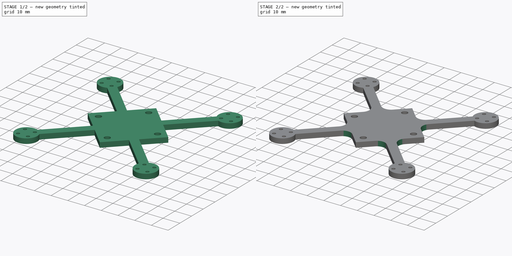
[diagram: build sequence overview — one tinted view per stage of 2, left to right]
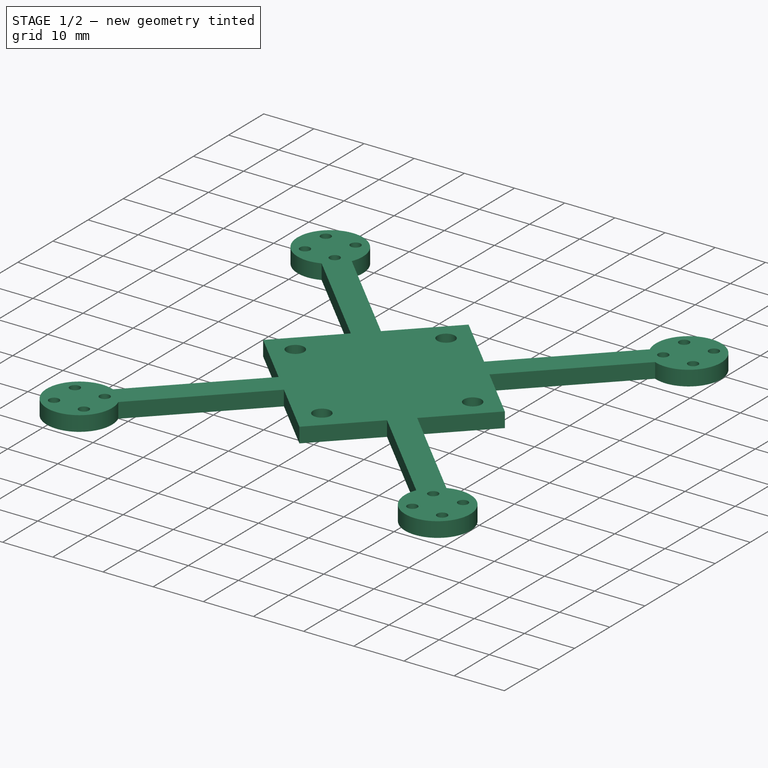
[diagram: stage 1 of 2 — iso view after this stage's code; geometry added in this stage tinted green]
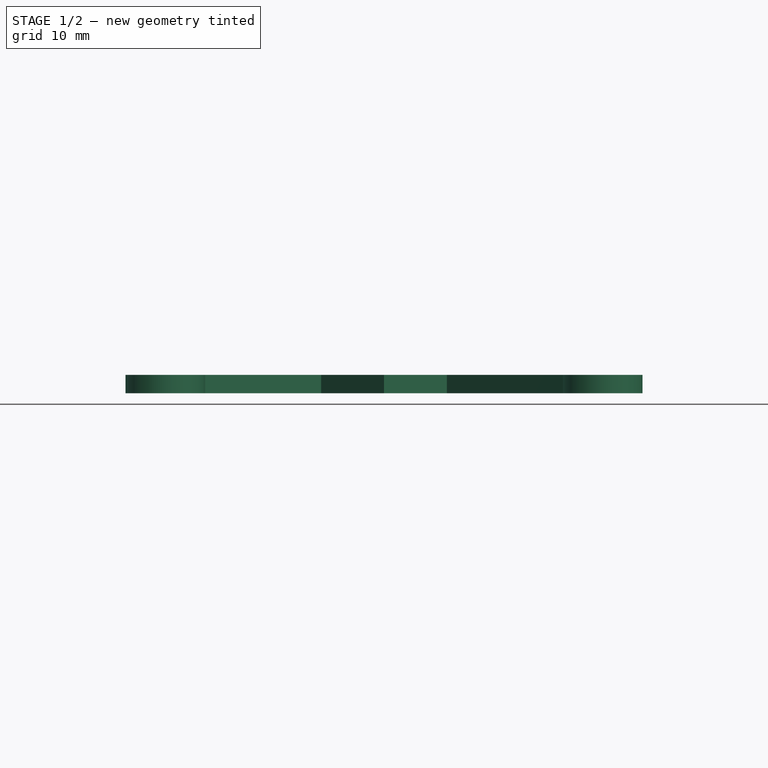
[diagram: stage 1 of 2 — front view after this stage's code; geometry added in this stage tinted green]
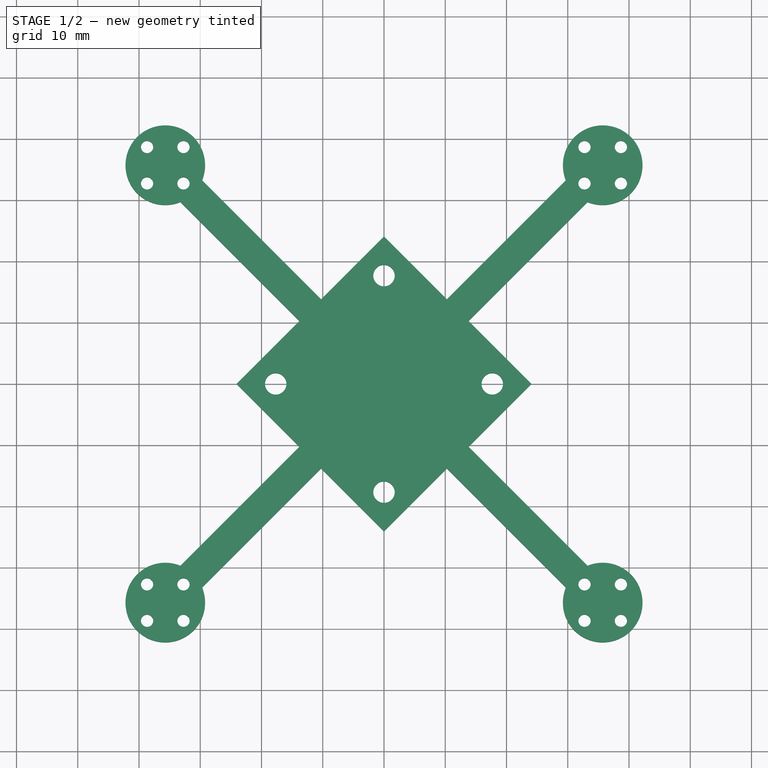
[diagram: stage 1 of 2 — top view after this stage's code; geometry added in this stage tinted green]
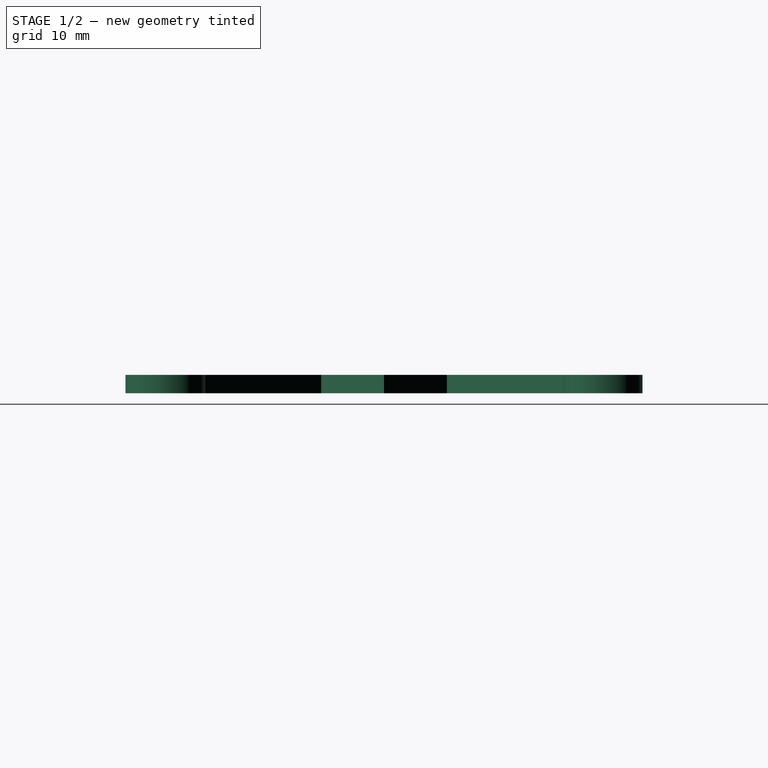
[diagram: stage 1 of 2 — right view after this stage's code; geometry added in this stage tinted green]
FCSTD DOCUMENT  (FreeCAD 0.19R24267 +99 (Git))
Label: 1104机架
License: All rights reserved
LicenseURL: http://en.wikipedia.org/wiki/All_rights_reserved
objects: Sketcher::SketchObject×2, PartDesign::Pad×1, PartDesign::Fillet×1, PartDesign::Body×1
note: 7 computed .brp shape members not serialized (recipe doc carries the construction recipe); baked Part::Feature solids carry a one-line shape summary decoded from their .brp

FEATURE [Sketcher::SketchObject] Sketch
  FullyConstrained = false
  MapMode = 5
  Support = -> [XY_Plane]
  sketch-geometry (103):
    g0: Circle CenterX=-35.7089 CenterY=35.7089 CenterZ=0 NormalX=0 NormalY=0 NormalZ=1 AngleXU=0 Radius=29
    g1: Circle CenterX=-38.6787 CenterY=38.6787 CenterZ=0 NormalX=0 NormalY=0 NormalZ=1 AngleXU=0 Radius=1
    g2: Circle CenterX=-38.6787 CenterY=32.739 CenterZ=0 NormalX=0 NormalY=0 NormalZ=1 AngleXU=0 Radius=1
    g3: Circle CenterX=-32.739 CenterY=38.6787 CenterZ=0 NormalX=0 NormalY=0 NormalZ=1 AngleXU=0 Radius=1
    g4: Circle CenterX=-32.739 CenterY=32.739 CenterZ=0 NormalX=0 NormalY=0 NormalZ=1 AngleXU=0 Radius=1
    g5: LineSegment StartX=-32.739 StartY=38.6787 StartZ=0 EndX=-38.6787 EndY=32.739 EndZ=0
    g6: LineSegment StartX=-32.739 StartY=32.739 StartZ=0 EndX=-38.6787 EndY=38.6787 EndZ=0
    g7: LineSegment StartX=-38.6787 StartY=38.6787 StartZ=0 EndX=-32.739 EndY=38.6787 EndZ=0
    g8: LineSegment StartX=-38.6787 StartY=38.6787 StartZ=0 EndX=-38.6787 EndY=32.739 EndZ=0
    g9: ArcOfCircle CenterX=-35.7089 CenterY=35.7089 CenterZ=0 NormalX=0 NormalY=0 NormalZ=1 AngleXU=0 Radius=6.5 StartAngle=5.89258 EndAngle=11.3862
    g10: LineSegment StartX=-33.234 StartY=29.6985 StartZ=0 EndX=-13.8107 EndY=10.2752 EndZ=0
    g11: LineSegment StartX=-29.6985 StartY=33.234 StartZ=0 EndX=-10.2752 EndY=13.8107 EndZ=0
    g12: LineSegment StartX=-29.6985 StartY=33.234 StartZ=0 EndX=-33.234 EndY=29.6985 EndZ=0
    g13: LineSegment StartX=0 StartY=3.53553 StartZ=0 EndX=0 EndY=0 EndZ=0
    g14: LineSegment StartX=0 StartY=0 StartZ=0 EndX=-3.53553 EndY=0 EndZ=0
    g15: LineSegment StartX=0 StartY=24.086 StartZ=0 EndX=-10.2752 EndY=13.8107 EndZ=0
    g16: LineSegment StartX=-17.6777 StartY=4.73427e-07 StartZ=0 EndX=-2.35168e-07 EndY=17.6777 EndZ=0
    g17: LineSegment StartX=0 StartY=0 StartZ=0 EndX=-15.2028 EndY=15.2028 EndZ=0
    g18: GeomPoint X=-19.4277 Y=-7e-16 Z=0
    g19: GeomPoint X=-15.9277 Y=-5e-16 Z=0
    g20: GeomPoint X=-0.00295282 Y=19.4277 Z=0
    g21: GeomPoint X=-0.0489359 Y=15.9284 Z=0
    g22: ArcOfCircle CenterX=-2.35168e-07 CenterY=17.6777 CenterZ=0 NormalX=0 NormalY=0 NormalZ=1 AngleXU=0 Radius=1.75 StartAngle=1.57248 EndAngle=4.68442
    g23: ArcOfCircle CenterX=-17.6777 CenterY=4.73427e-07 CenterZ=0 NormalX=0 NormalY=0 NormalZ=1 AngleXU=0 Radius=1.75 StartAngle=6.28319 EndAngle=9.42478
    g24: LineSegment StartX=-13.8107 StartY=10.2752 StartZ=0 EndX=-24.086 EndY=0 EndZ=0
    g25: Circle CenterX=38.6787 CenterY=-38.6787 CenterZ=0 NormalX=0 NormalY=0 NormalZ=1 AngleXU=0 Radius=1
    g26: Circle CenterX=38.6787 CenterY=-32.739 CenterZ=0 NormalX=0 NormalY=0 NormalZ=1 AngleXU=0 Radius=1
    g27: Circle CenterX=32.739 CenterY=-38.6787 CenterZ=0 NormalX=0 NormalY=0 NormalZ=1 AngleXU=0 Radius=1
    g28: Circle CenterX=32.739 CenterY=-32.739 CenterZ=0 NormalX=0 NormalY=0 NormalZ=1 AngleXU=0 Radius=1
    g29: LineSegment StartX=32.739 StartY=-38.6787 StartZ=0 EndX=38.6787 EndY=-32.739 EndZ=0
    g30: LineSegment StartX=32.739 StartY=-32.739 StartZ=0 EndX=38.6787 EndY=-38.6787 EndZ=0
    g31: LineSegment StartX=38.6787 StartY=-38.6787 StartZ=0 EndX=32.739 EndY=-38.6787 EndZ=0
    g32: LineSegment StartX=38.6787 StartY=-38.6787 StartZ=0 EndX=38.6787 EndY=-32.739 EndZ=0
    g33: ArcOfCircle CenterX=35.7089 CenterY=-35.7089 CenterZ=0 NormalX=0 NormalY=0 NormalZ=1 AngleXU=0 Radius=6.5 StartAngle=2.75099 EndAngle=8.24459
    g34: LineSegment StartX=33.234 StartY=-29.6985 StartZ=0 EndX=13.8107 EndY=-10.2752 EndZ=0
    g35: LineSegment StartX=29.6985 StartY=-33.234 StartZ=0 EndX=10.2752 EndY=-13.8107 EndZ=0
    g36: LineSegment StartX=29.6985 StartY=-33.234 StartZ=0 EndX=33.234 EndY=-29.6985 EndZ=0
    g37: LineSegment StartX=0 StartY=-3.53553 StartZ=0 EndX=0 EndY=0 EndZ=0
    g38: LineSegment StartX=0 StartY=0 StartZ=0 EndX=3.53553 EndY=0 EndZ=0
    g39: LineSegment StartX=0 StartY=-24.086 StartZ=0 EndX=10.2752 EndY=-13.8107 EndZ=0
    g40: LineSegment StartX=17.6777 StartY=-4.73427e-07 StartZ=0 EndX=2.35168e-07 EndY=-17.6777 EndZ=0
    g41: LineSegment StartX=0 StartY=0 StartZ=0 EndX=15.2028 EndY=-15.2028 EndZ=0
    g42: GeomPoint X=19.4277 Y=-1.1e-15 Z=0
    g43: GeomPoint X=15.9277 Y=3e-16 Z=0
    g44: GeomPoint X=0.00295282 Y=-19.4277 Z=0
    g45: GeomPoint X=0.0489359 Y=-15.9284 Z=0
    g46: ArcOfCircle CenterX=2.35168e-07 CenterY=-17.6777 CenterZ=0 NormalX=0 NormalY=0 NormalZ=1 AngleXU=0 Radius=1.75 StartAngle=4.71408 EndAngle=7.82601
    g47: ArcOfCircle CenterX=17.6777 CenterY=-4.73427e-07 CenterZ=0 NormalX=0 NormalY=0 NormalZ=1 AngleXU=0 Radius=1.75 StartAngle=3.14159 EndAngle=6.28319
    g48: LineSegment StartX=13.8107 StartY=-10.2752 StartZ=0 EndX=24.086 EndY=0 EndZ=0
    g49: Circle CenterX=-38.6787 CenterY=-38.6787 CenterZ=0 NormalX=0 NormalY=0 NormalZ=1 AngleXU=0 Radius=1
    g50: Circle CenterX=-38.6787 CenterY=-32.739 CenterZ=0 NormalX=0 NormalY=0 NormalZ=1 AngleXU=0 Radius=1
    g51: Circle CenterX=-32.739 CenterY=-38.6787 CenterZ=0 NormalX=0 NormalY=0 NormalZ=1 AngleXU=0 Radius=1
    g52: Circle CenterX=-32.739 CenterY=-32.739 CenterZ=0 NormalX=0 NormalY=0 NormalZ=1 AngleXU=0 Radius=1
    g53: LineSegment StartX=-32.739 StartY=-38.6787 StartZ=0 EndX=-38.6787 EndY=-32.739 EndZ=0
    g54: LineSegment StartX=-32.739 StartY=-32.739 StartZ=0 EndX=-38.6787 EndY=-38.6787 EndZ=0
    g55: LineSegment StartX=-38.6787 StartY=-38.6787 StartZ=0 EndX=-32.739 EndY=-38.6787 EndZ=0
    g56: LineSegment StartX=-38.6787 StartY=-38.6787 StartZ=0 EndX=-38.6787 EndY=-32.739 EndZ=0
    g57: ArcOfCircle CenterX=-35.7089 CenterY=-35.7089 CenterZ=0 NormalX=0 NormalY=0 NormalZ=1 AngleXU=0 Radius=6.5 StartAngle=1.18019 EndAngle=6.67379
    g58: LineSegment StartX=-33.234 StartY=-29.6985 StartZ=0 EndX=-13.8107 EndY=-10.2752 EndZ=0
    g59: LineSegment StartX=-29.6985 StartY=-33.234 StartZ=0 EndX=-10.2752 EndY=-13.8107 EndZ=0
    g60: LineSegment StartX=-29.6985 StartY=-33.234 StartZ=0 EndX=-33.234 EndY=-29.6985 EndZ=0
    g61: LineSegment StartX=0 StartY=-3.53553 StartZ=0 EndX=0 EndY=0 EndZ=0
    g62: LineSegment StartX=0 StartY=0 StartZ=0 EndX=-3.53553 EndY=0 EndZ=0
    g63: LineSegment StartX=0 StartY=-24.086 StartZ=0 EndX=-10.2752 EndY=-13.8107 EndZ=0
    g64: LineSegment StartX=-17.6777 StartY=-4.67246e-07 StartZ=0 EndX=-2.35168e-07 EndY=-17.6777 EndZ=0
    g65: LineSegment StartX=0 StartY=0 StartZ=0 EndX=-15.2028 EndY=-15.2028 EndZ=0
    g66: GeomPoint X=-19.4277 Y=-7e-16 Z=0
    g67: GeomPoint X=-15.9277 Y=-5e-16 Z=0
    g68: GeomPoint X=0.00295282 Y=-19.4277 Z=0
    g69: GeomPoint X=0.0489359 Y=-15.9284 Z=0
    g70: ArcOfCircle CenterX=-2.35168e-07 CenterY=-17.6777 CenterZ=0 NormalX=0 NormalY=0 NormalZ=1 AngleXU=0 Radius=1.75 StartAngle=1.54283 EndAngle=4.71408
    g71: ArcOfCircle CenterX=-17.6777 CenterY=-4.67246e-07 CenterZ=0 NormalX=0 NormalY=0 NormalZ=1 AngleXU=0 Radius=1.75 StartAngle=3.14159 EndAngle=6.28319
    g72: LineSegment StartX=-13.8107 StartY=-10.2752 StartZ=0 EndX=-24.086 EndY=0 EndZ=0
    g73: LineSegment StartX=0 StartY=3.53553 StartZ=0 EndX=0 EndY=0 EndZ=0
    g74: LineSegment StartX=0 StartY=0 StartZ=0 EndX=3.53553 EndY=0 EndZ=0
    g75: Circle CenterX=38.6787 CenterY=38.6787 CenterZ=0 NormalX=0 NormalY=0 NormalZ=1 AngleXU=0 Radius=1
    g76: Circle CenterX=38.6787 CenterY=32.739 CenterZ=0 NormalX=0 NormalY=0 NormalZ=1 AngleXU=0 Radius=1
    g77: Circle CenterX=32.739 CenterY=38.6787 CenterZ=0 NormalX=0 NormalY=0 NormalZ=1 AngleXU=0 Radius=1
    g78: Circle CenterX=32.739 CenterY=32.739 CenterZ=0 NormalX=0 NormalY=0 NormalZ=1 AngleXU=0 Radius=1
    g79: LineSegment StartX=32.739 StartY=38.6787 StartZ=0 EndX=38.6787 EndY=32.739 EndZ=0
    g80: LineSegment StartX=32.739 StartY=32.739 StartZ=0 EndX=38.6787 EndY=38.6787 EndZ=0
    g81: LineSegment StartX=38.6787 StartY=38.6787 StartZ=0 EndX=32.739 EndY=38.6787 EndZ=0
    g82: LineSegment StartX=38.6787 StartY=38.6787 StartZ=0 EndX=38.6787 EndY=32.739 EndZ=0
    g83: ArcOfCircle CenterX=35.7089 CenterY=35.7089 CenterZ=0 NormalX=0 NormalY=0 NormalZ=1 AngleXU=0 Radius=6.5 StartAngle=4.32178 EndAngle=9.81539
    g84: LineSegment StartX=33.234 StartY=29.6985 StartZ=0 EndX=13.8107 EndY=10.2752 EndZ=0
    g85: LineSegment StartX=29.6985 StartY=33.234 StartZ=0 EndX=10.2752 EndY=13.8107 EndZ=0
    g86: LineSegment StartX=29.6985 StartY=33.234 StartZ=0 EndX=33.234 EndY=29.6985 EndZ=0
    g87: LineSegment StartX=0 StartY=3.53553 StartZ=0 EndX=0 EndY=0 EndZ=0
    g88: LineSegment StartX=0 StartY=0 StartZ=0 EndX=3.53553 EndY=0 EndZ=0
    g89: LineSegment StartX=0 StartY=24.086 StartZ=0 EndX=10.2752 EndY=13.8107 EndZ=0
    g90: LineSegment StartX=17.6777 StartY=4.67246e-07 StartZ=0 EndX=2.35168e-07 EndY=17.6777 EndZ=0
    g91: LineSegment StartX=0 StartY=0 StartZ=0 EndX=15.2028 EndY=15.2028 EndZ=0
    g92: GeomPoint X=19.4277 Y=-1.1e-15 Z=0
    g93: GeomPoint X=15.9277 Y=3e-16 Z=0
    g94: GeomPoint X=-0.00295282 Y=19.4277 Z=0
    g95: GeomPoint X=-0.0489359 Y=15.9284 Z=0
    g96: ArcOfCircle CenterX=2.35168e-07 CenterY=17.6777 CenterZ=0 NormalX=0 NormalY=0 NormalZ=1 AngleXU=0 Radius=1.75 StartAngle=4.68442 EndAngle=7.85567
    g97: ArcOfCircle CenterX=17.6777 CenterY=4.67246e-07 CenterZ=0 NormalX=0 NormalY=0 NormalZ=1 AngleXU=0 Radius=1.75 StartAngle=6.28319 EndAngle=9.42478
    g98: LineSegment StartX=13.8107 StartY=10.2752 StartZ=0 EndX=24.086 EndY=0 EndZ=0
    g99: LineSegment StartX=0 StartY=0 StartZ=0 EndX=3.53553 EndY=0 EndZ=0
    g100: GeomPoint X=19.4277 Y=-1.1e-15 Z=0
    g101: GeomPoint X=15.9277 Y=3e-16 Z=0
    g102: LineSegment StartX=0 StartY=3.53553 StartZ=0 EndX=0 EndY=0 EndZ=0
  constraints (198):
    c: Diameter(g1) = 2
    c: Diameter(g0) = 58
    c: Equal(g1,g2) = 2
    c: Equal(g1,g3) = 2
    c: Equal(g3,g4) = 2
    c: Coincident(g5,g3)
    c: Coincident(g5,g2)
    c: Coincident(g6,g4)
    c: Coincident(g6,g1)
    c: Perpendicular(g5,g6)
    c: Equal(g6,g5)
    c: Distance(g6) = 8.4
    c: PointOnObject(g0,g5)
    c: PointOnObject(g0,g6)
    c: Coincident(g7,g1)
    c: Coincident(g7,g3)
    c: Horizontal(g7)
    c: Coincident(g8,g1)
    c: Coincident(g8,g2)
    c: Vertical(g8)
    c: Equal(g8,g7)
    c: Coincident(g9,g0)
    c: Diameter(g9) = 13
    c: PointOnObject(g14,g-1)
    c: PointOnObject(g13,g-2)
    c: Parallel(g11,g10)
    c: Coincident(g12,g11)
    c: Coincident(g12,g10)
    c: Distance(g12) = 5
    c: Angle(g-1,g10) = 2.35619
    c: Coincident(g14,g13)
    c: Equal(g14,g13)
    c: Coincident(g13,g-1)
    c: PointOnObject(g15,g-2)
    c: PointOnObject(g24,g-1)
    c: Distance(g16) = 25
    c: Angle(g-1,g16) = 0.785398
    c: Coincident(g17,g13)
    c: PointOnObject(g17,g0)
    c: Parallel(g17,g11)
    c: Distance(g17) = 21.5
    c: Parallel(g15,g16)
    c: PointOnObject(g18,g-1)
    c: PointOnObject(g19,g-1)
    c: Coincident(g22,g16)
    c: Coincident(g22,g20)
    c: Coincident(g22,g21)
    c: Coincident(g23,g16)
    c: Coincident(g23,g19)
    c: Coincident(g23,g18)
    c: PointOnObject(g10,g15)
    c: Coincident(g15,g11)
    c: Tangent(g15,g24)
    c: PointOnObject(g24,g10)
    c: Coincident(g9,g11)
    c: Coincident(g9,g10)
    c: Diameter(g25) = 2
    c: Equal(g25,g26) = 2
    c: Equal(g25,g27) = 2
    c: Equal(g27,g28) = 2
    c: Coincident(g29,g27)
    c: Coincident(g29,g26)
    c: Coincident(g30,g28)
    c: Coincident(g30,g25)
    c: Perpendicular(g29,g30)
    c: Equal(g30,g29)
    c: Distance(g30) = 8.4
    c: Coincident(g31,g25)
    c: Coincident(g31,g27)
    c: Horizontal(g31)
    c: Coincident(g32,g25)
    c: Coincident(g32,g26)
    c: Vertical(g32)
    c: Equal(g32,g31)
    c: Diameter(g33) = 13
    c: Parallel(g35,g34)
    c: Coincident(g36,g35)
    c: Coincident(g36,g34)
    c: Distance(g36) = 5
    c: Coincident(g38,g37)
    c: Equal(g38,g37)
    c: Distance(g40) = 25
    c: Coincident(g41,g37)
    c: Parallel(g41,g35)
    c: Distance(g41) = 21.5
    c: Parallel(g39,g40)
    c: Coincident(g46,g40)
    c: Coincident(g46,g44)
    c: Coincident(g46,g45)
    c: Coincident(g47,g40)
    c: Coincident(g47,g43)
    c: Coincident(g47,g42)
    c: PointOnObject(g34,g39)
    c: Coincident(g39,g35)
    c: Tangent(g39,g48)
    c: PointOnObject(g48,g34)
    c: Coincident(g33,g35)
    c: Coincident(g33,g34)
    c: Diameter(g49) = 2
    c: Equal(g49,g50) = 2
    c: Equal(g49,g51) = 2
    c: Equal(g51,g52) = 2
    c: Coincident(g53,g51)
    c: Coincident(g53,g50)
    c: Coincident(g54,g52)
    c: Coincident(g54,g49)
    c: Perpendicular(g53,g54)
    c: Equal(g54,g53)
    c: Distance(g54) = 8.4
    c: Coincident(g55,g49)
    c: Coincident(g55,g51)
    c: Horizontal(g55)
    c: Coincident(g56,g49)
    c: Coincident(g56,g50)
    c: Vertical(g56)
    c: Equal(g56,g55)
    c: Diameter(g57) = 13
    c: Parallel(g59,g58)
    c: Coincident(g60,g59)
    c: Coincident(g60,g58)
    c: Distance(g60) = 5
    c: Coincident(g62,g61)
    c: Equal(g62,g61)
    c: Distance(g64) = 25
    c: Coincident(g65,g61)
    c: Parallel(g65,g59)
    c: Distance(g65) = 21.5
    c: Parallel(g63,g64)
    c: Coincident(g70,g64)
    c: Coincident(g70,g68)
    c: Coincident(g70,g69)
    c: Coincident(g71,g64)
    c: Coincident(g71,g67)
    c: Coincident(g71,g66)
    c: PointOnObject(g58,g63)
    c: Coincident(g63,g59)
    c: Tangent(g63,g72)
    c: PointOnObject(g72,g58)
    c: Coincident(g57,g59)
    c: Coincident(g57,g58)
    c: Coincident(g74,g73)
    c: Equal(g74,g73)
    c: Diameter(g75) = 2
    c: Equal(g75,g76) = 2
    c: Equal(g75,g77) = 2
    c: Equal(g77,g78) = 2
    c: Coincident(g79,g77)
    c: Coincident(g79,g76)
    c: Coincident(g80,g78)
    c: Coincident(g80,g75)
    c: Perpendicular(g79,g80)
    c: Equal(g80,g79)
    c: Distance(g80) = 8.4
    c: Coincident(g81,g75)
    c: Coincident(g81,g77)
    c: Horizontal(g81)
    c: Coincident(g82,g75)
    c: Coincident(g82,g76)
    c: Vertical(g82)
    c: Equal(g82,g81)
    c: Diameter(g83) = 13
    c: Parallel(g85,g84)
    c: Coincident(g86,g85)
    c: Coincident(g86,g84)
    c: Distance(g86) = 5
    c: Coincident(g88,g87)
    c: Equal(g88,g87)
    c: Distance(g90) = 25
    c: Coincident(g91,g87)
    c: Parallel(g91,g85)
    c: Distance(g91) = 21.5
    c: Parallel(g89,g90)
    c: Coincident(g96,g90)
    c: Coincident(g96,g94)
    c: Coincident(g96,g95)
    c: Coincident(g97,g90)
    c: Coincident(g97,g93)
    c: Coincident(g97,g92)
    c: PointOnObject(g84,g89)
    c: Coincident(g89,g85)
    c: Tangent(g89,g98)
    c: PointOnObject(g98,g84)
    c: Coincident(g83,g85)
    c: Coincident(g83,g84)
    c: Coincident(g15,g89)
    c: Coincident(g20,g94)
    c: Coincident(g21,g95)
    c: Coincident(g45,g69)
    c: Coincident(g44,g68)
    c: Coincident(g39,g63)
    c: Coincident(g24,g72)
    c: Coincident(g18,g66)
    c: Coincident(g19,g67)
    c: Coincident(g43,g93)
    c: Coincident(g43,g101)
    c: Coincident(g42,g92)
    c: Coincident(g42,g100)
    c: Coincident(g48,g98)
FEATURE [PartDesign::Pad] Pad
  Direction = (1,1,1)
  Length = 3
  Length2 = 100
  Profile = -> Sketch
  Type = 0
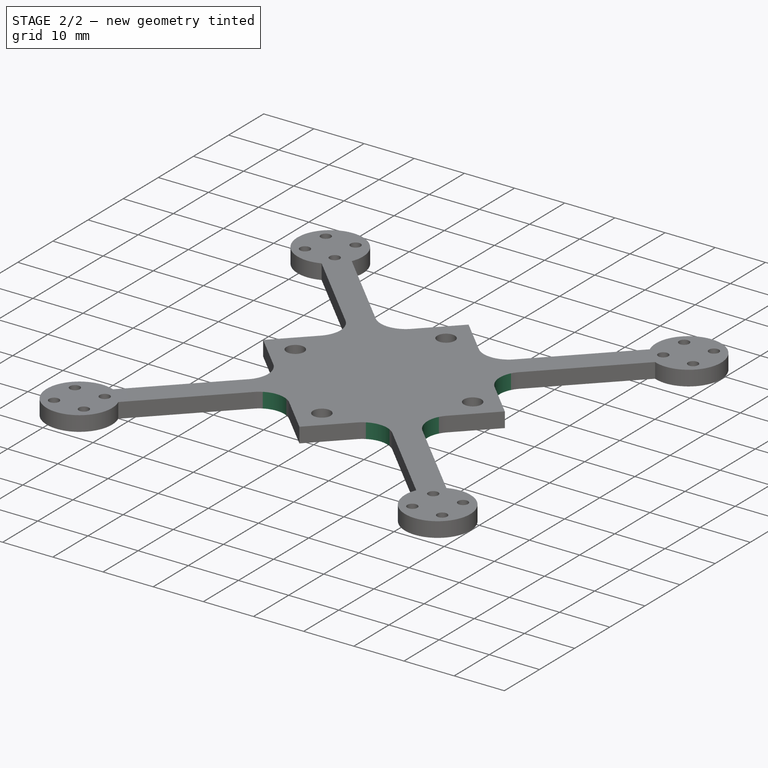
[diagram: stage 2 of 2 — iso view after this stage's code; geometry added in this stage tinted green]
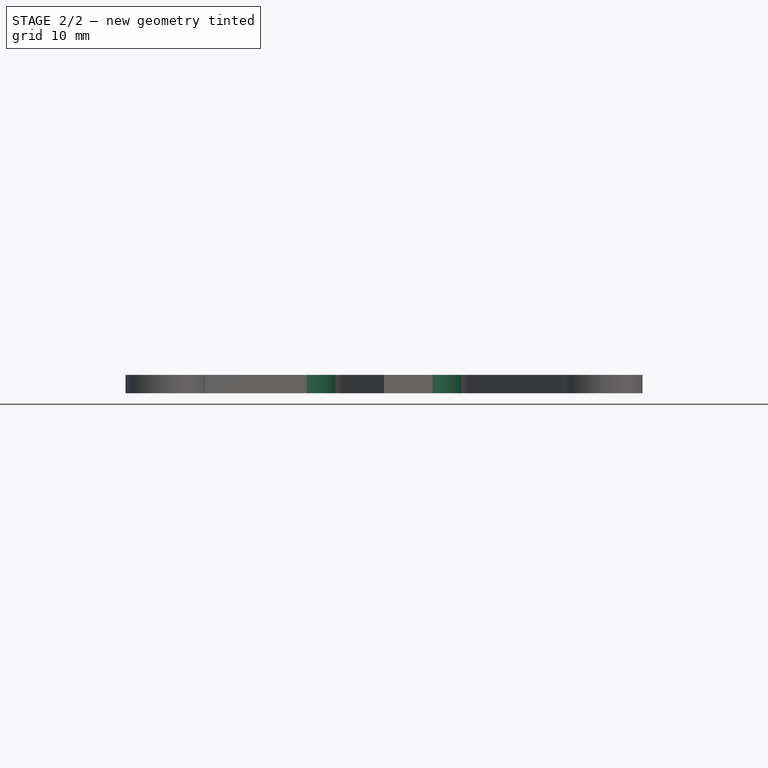
[diagram: stage 2 of 2 — front view after this stage's code; geometry added in this stage tinted green]
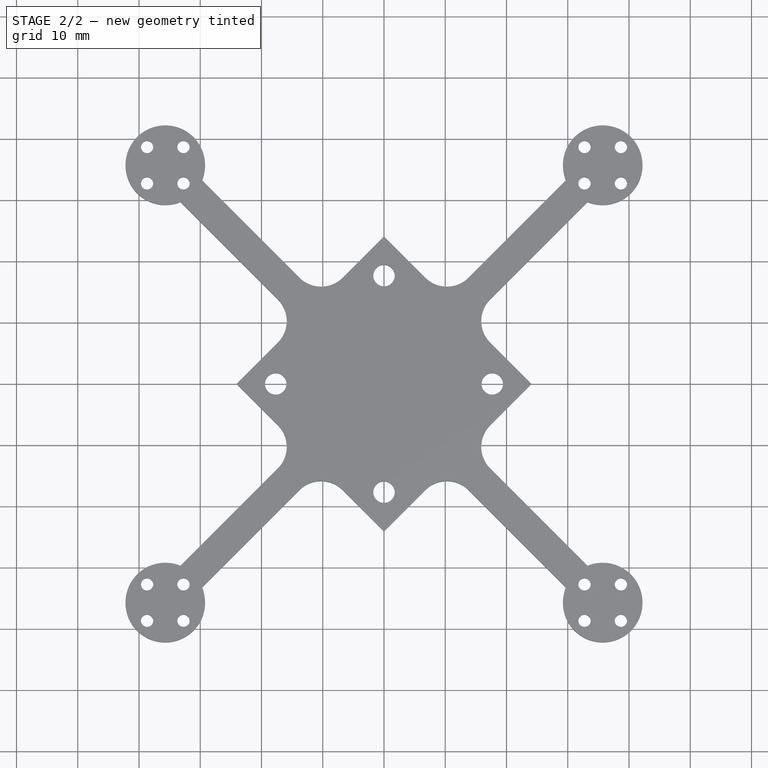
[diagram: stage 2 of 2 — top view after this stage's code; geometry added in this stage tinted green]
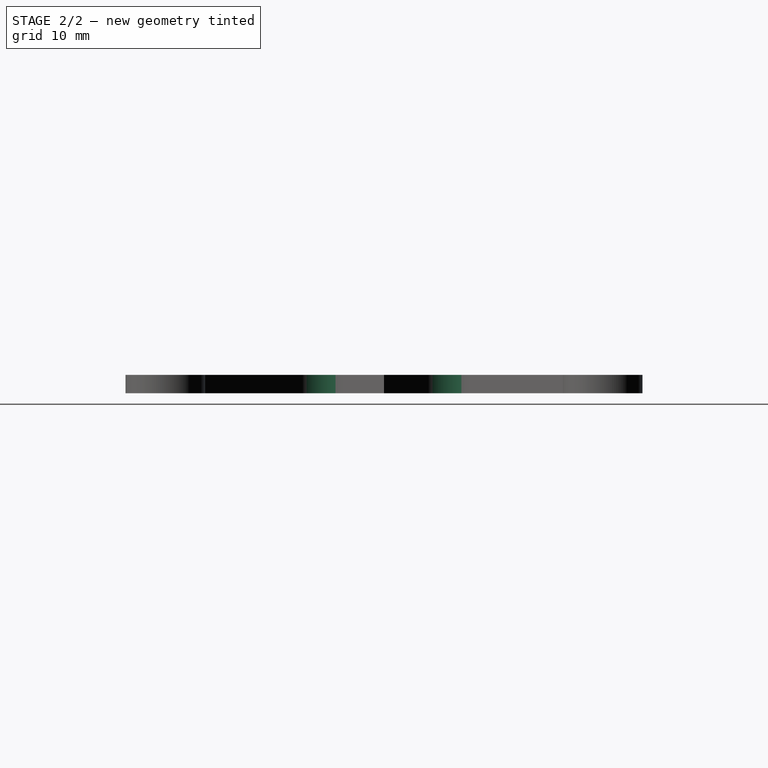
[diagram: stage 2 of 2 — right view after this stage's code; geometry added in this stage tinted green]
FEATURE [PartDesign::Fillet] Fillet
  Base = -> Pad [Edge47,Edge41,Edge26,Edge11,Edge56,Edge2,Edge17,Edge32]
  BaseFeature = -> Pad
  Radius = 5
  SupportTransform = false
FEATURE [Sketcher::SketchObject] Sketch001
  FullyConstrained = true
  MapMode = 5
  Placement = pos=(0,0,0) rot=(1,0,0;3.14159rad)
  Support = -> [Fillet]
FEATURE [PartDesign::Body] Body
  Group = -> [Sketch,Pad,Fillet,Sketch001]
  Origin = -> Origin
  Tip = -> Fillet
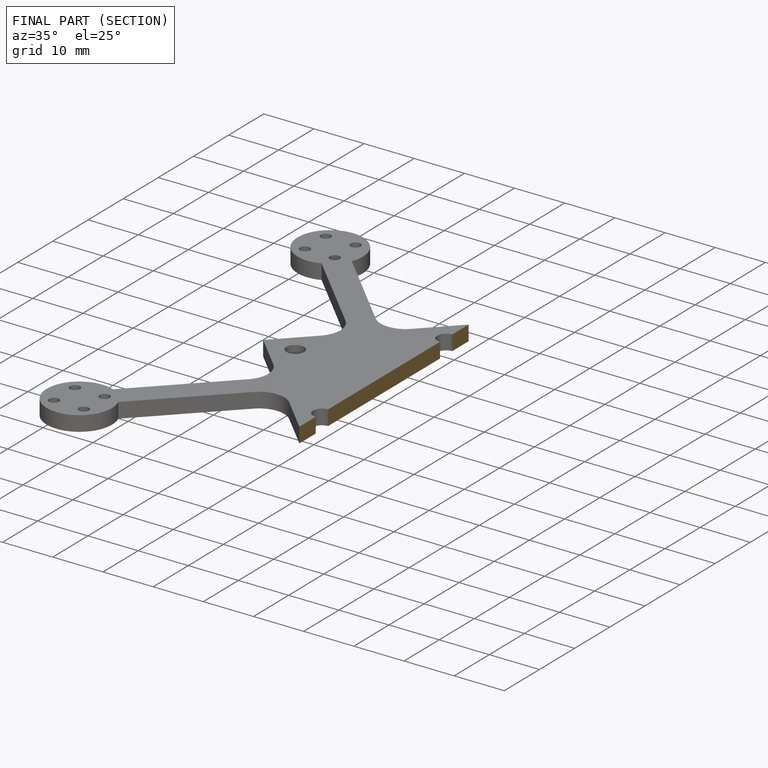
[diagram: finished part — half-section view (interior)]
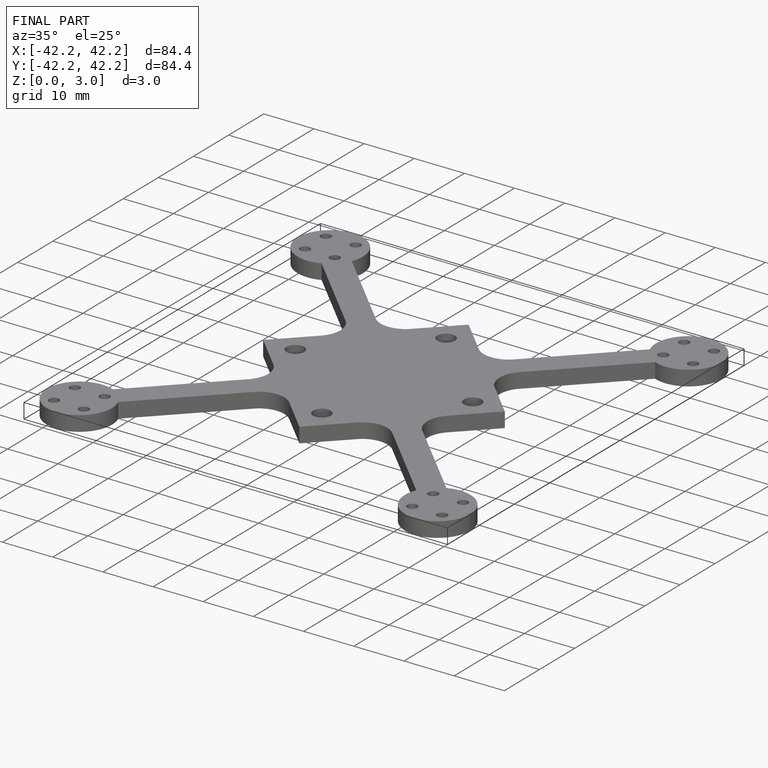
[diagram: finished part — iso view with bounding-box wireframe]
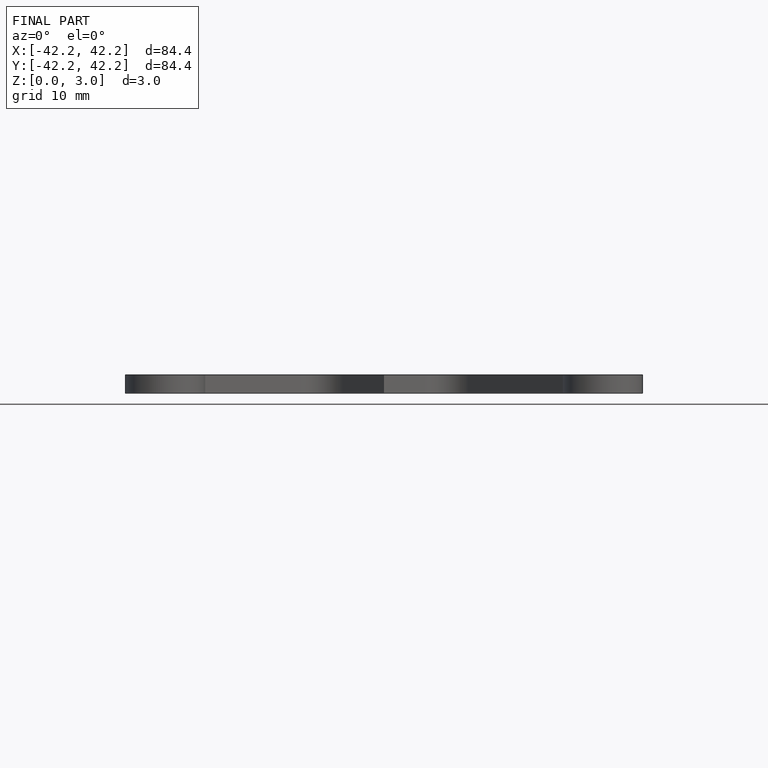
[diagram: finished part — front view with bounding-box wireframe]
